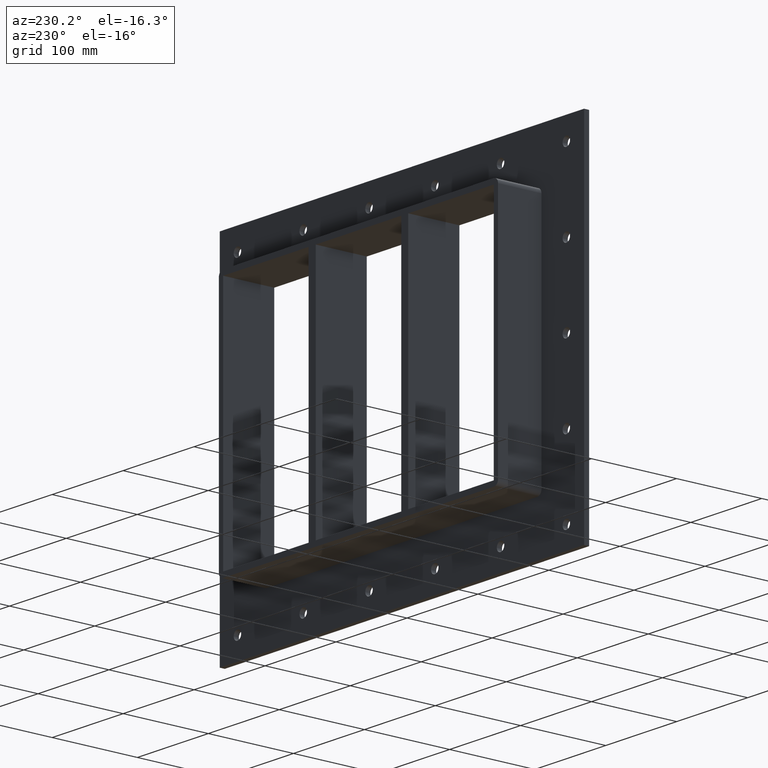
[diagram: clean part render]
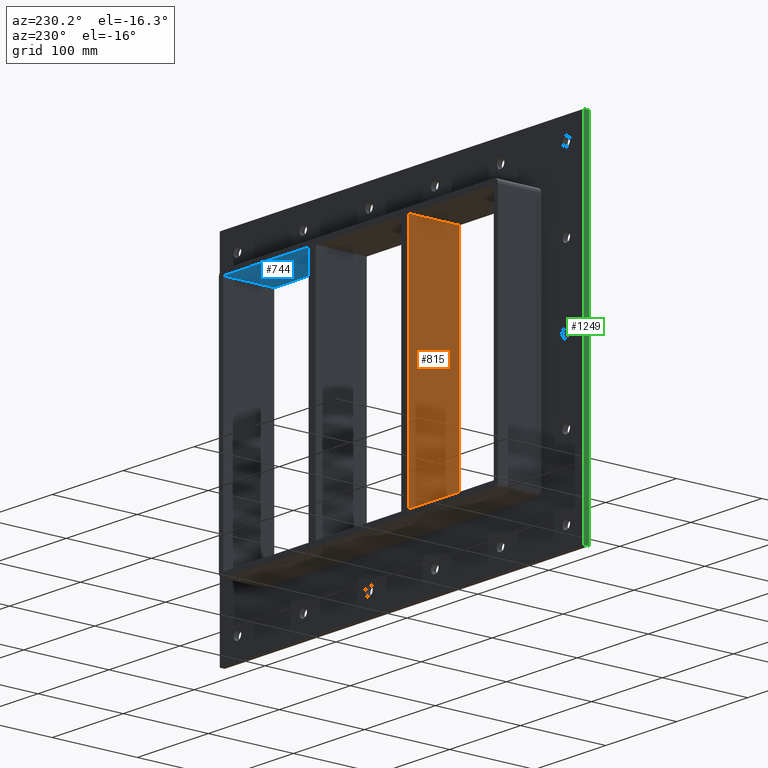
[diagram: same view with three faces highlighted in distinct colors, each labeled with its STEP entity id]
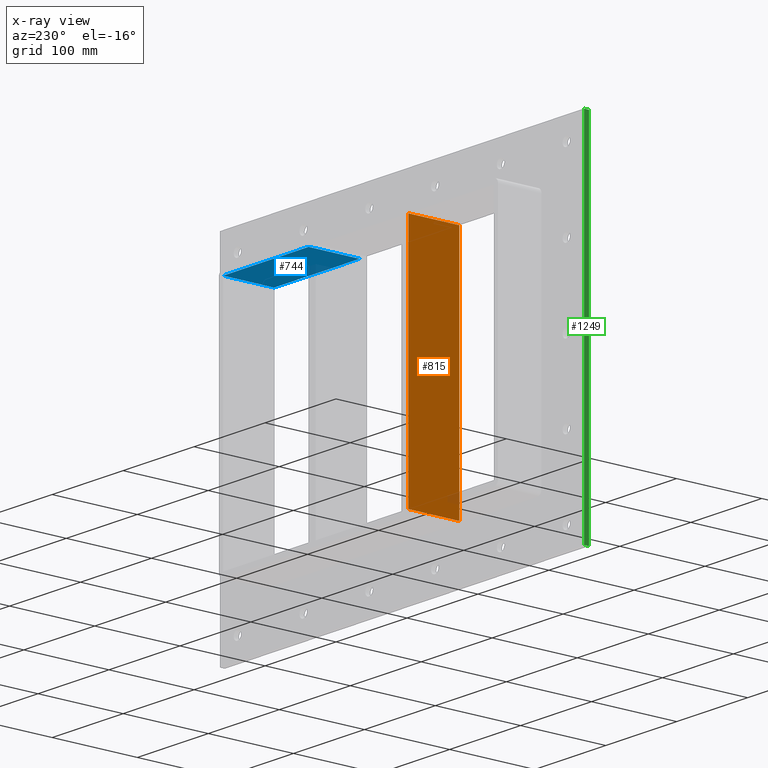
[diagram: x-ray of the same camera — body ghosted, the three highlighted faces saturated]
A machine part, auxiliary view with three faces highlighted in distinct colors.
The next image is the same camera in x-ray (body ghosted, the three faces saturated) — at least one of them is partly hidden behind the body in this view.
Their STEP definitions:

[orange] entity #815 — the highlighted planar face has unit normal (-1, 0, 0).
#776=CARTESIAN_POINT('',(-70.250000000001364,-3.0,-139.0));
#777=DIRECTION('',(-1.0,0.0,0.0));
#778=DIRECTION('',(0.0,0.0,1.0));
#779=AXIS2_PLACEMENT_3D('',#776,#777,#778);
#780=PLANE('',#779);
#781=CARTESIAN_POINT('',(-70.250000000001364,-3.0,-139.0));
#782=VERTEX_POINT('',#781);
#783=CARTESIAN_POINT('',(-70.250000000001407,-3.0,139.0));
#784=VERTEX_POINT('',#783);
#785=CARTESIAN_POINT('',(-70.250000000001364,-3.0,-139.0));
#786=DIRECTION('',(0.0,0.0,1.0));
#787=VECTOR('',#786,278.0);
#788=LINE('',#785,#787);
#789=EDGE_CURVE('',#782,#784,#788,.T.);
#790=ORIENTED_EDGE('',*,*,#789,.T.);
#791=CARTESIAN_POINT('',(-70.250000000001407,57.0,139.0));
#792=VERTEX_POINT('',#791);
#793=CARTESIAN_POINT('',(-70.250000000001407,57.000000000000007,139.0));
#794=DIRECTION('',(0.0,-1.0,0.0));
#795=VECTOR('',#794,60.000000000000007);
#796=LINE('',#793,#795);
#797=EDGE_CURVE('',#792,#784,#796,.T.);
#798=ORIENTED_EDGE('',*,*,#797,.F.);
#799=CARTESIAN_POINT('',(-70.250000000001364,57.0,-139.0));
#800=VERTEX_POINT('',#799);
#801=CARTESIAN_POINT('',(-70.250000000001364,57.0,-139.0));
#802=DIRECTION('',(0.0,0.0,1.0));
#803=VECTOR('',#802,278.0);
#804=LINE('',#801,#803);
#805=EDGE_CURVE('',#800,#792,#804,.T.);
#806=ORIENTED_EDGE('',*,*,#805,.F.);
#807=CARTESIAN_POINT('',(-70.250000000001364,-3.0,-139.0));
#808=DIRECTION('',(0.0,1.0,0.0));
#809=VECTOR('',#808,60.000000000000007);
#810=LINE('',#807,#809);
#811=EDGE_CURVE('',#782,#800,#810,.T.);
#812=ORIENTED_EDGE('',*,*,#811,.F.);
#813=EDGE_LOOP('',(#790,#798,#806,#812));
#814=FACE_OUTER_BOUND('',#813,.T.);
#815=ADVANCED_FACE('',(#814),#780,.T.);

[blue] entity #744 — the highlighted planar face has unit normal (0, 0, 1).
#617=CARTESIAN_POINT('',(70.250000000003638,-3.0,139.0));
#618=VERTEX_POINT('',#617);
#635=CARTESIAN_POINT('',(70.250000000003638,57.0,139.0));
#636=VERTEX_POINT('',#635);
#643=CARTESIAN_POINT('',(70.250000000003638,-3.0,139.0));
#644=DIRECTION('',(0.0,1.0,0.0));
#645=VECTOR('',#644,60.000000000000007);
#646=LINE('',#643,#645);
#647=EDGE_CURVE('',#618,#636,#646,.T.);
#714=CARTESIAN_POINT('',(-190.75000000000003,0.0,139.0));
#715=DIRECTION('',(0.0,0.0,1.0));
#716=DIRECTION('',(1.0,0.0,0.0));
#717=AXIS2_PLACEMENT_3D('',#714,#715,#716);
#718=PLANE('',#717);
#719=ORIENTED_EDGE('',*,*,#647,.T.);
#720=CARTESIAN_POINT('',(190.75000000000011,57.0,139.0));
#721=VERTEX_POINT('',#720);
#722=CARTESIAN_POINT('',(190.75000000000011,57.0,139.0));
#723=DIRECTION('',(-1.0,0.0,0.0));
#724=VECTOR('',#723,120.49999999999646);
#725=LINE('',#722,#724);
#726=EDGE_CURVE('',#721,#636,#725,.T.);
#727=ORIENTED_EDGE('',*,*,#726,.F.);
#728=CARTESIAN_POINT('',(190.75000000000011,-3.0,139.0));
#729=VERTEX_POINT('',#728);
#730=CARTESIAN_POINT('',(190.75000000000011,-3.0,139.0));
#731=DIRECTION('',(0.0,1.0,0.0));
#732=VECTOR('',#731,60.0);
#733=LINE('',#730,#732);
#734=EDGE_CURVE('',#729,#721,#733,.T.);
#735=ORIENTED_EDGE('',*,*,#734,.F.);
#736=CARTESIAN_POINT('',(70.250000000003652,-3.0,139.0));
#737=DIRECTION('',(1.0,0.0,0.0));
#738=VECTOR('',#737,120.49999999999646);
#739=LINE('',#736,#738);
#740=EDGE_CURVE('',#618,#729,#739,.T.);
#741=ORIENTED_EDGE('',*,*,#740,.F.);
#742=EDGE_LOOP('',(#719,#727,#735,#741));
#743=FACE_OUTER_BOUND('',#742,.T.);
#744=ADVANCED_FACE('',(#743),#718,.F.);

[green] entity #1249 — the highlighted planar face has unit normal (-1, 0, 0).
#905=CARTESIAN_POINT('',(-256.75000000000006,6.000000000000001,204.99999999999997));
#906=VERTEX_POINT('',#905);
#923=CARTESIAN_POINT('',(-256.75000000000006,6.000000000000001,-204.99999999999997));
#924=VERTEX_POINT('',#923);
#931=CARTESIAN_POINT('',(-256.75000000000006,6.000000000000001,-204.99999999999997));
#932=DIRECTION('',(0.0,0.0,1.0));
#933=VECTOR('',#932,409.99999999999994);
#934=LINE('',#931,#933);
#935=EDGE_CURVE('',#924,#906,#934,.T.);
#1069=CARTESIAN_POINT('',(-256.75000000000006,0.0,204.99999999999997));
#1070=VERTEX_POINT('',#1069);
#1079=CARTESIAN_POINT('',(-256.75000000000006,0.0,-204.99999999999997));
#1080=VERTEX_POINT('',#1079);
#1081=CARTESIAN_POINT('',(-256.75000000000006,0.0,-204.99999999999997));
#1082=DIRECTION('',(0.0,0.0,1.0));
#1083=VECTOR('',#1082,409.99999999999994);
#1084=LINE('',#1081,#1083);
#1085=EDGE_CURVE('',#1080,#1070,#1084,.T.);
#1228=CARTESIAN_POINT('',(-256.75000000000006,0.0,-204.99999999999997));
#1229=DIRECTION('',(-1.0,0.0,0.0));
#1230=DIRECTION('',(0.0,0.0,1.0));
#1231=AXIS2_PLACEMENT_3D('',#1228,#1229,#1230);
#1232=PLANE('',#1231);
#1233=ORIENTED_EDGE('',*,*,#1085,.T.);
#1234=CARTESIAN_POINT('',(-256.75000000000006,0.0,204.99999999999997));
#1235=DIRECTION('',(0.0,1.0,0.0));
#1236=VECTOR('',#1235,6.000000000000001);
#1237=LINE('',#1234,#1236);
#1238=EDGE_CURVE('',#1070,#906,#1237,.T.);
#1239=ORIENTED_EDGE('',*,*,#1238,.T.);
#1240=ORIENTED_EDGE('',*,*,#935,.F.);
#1241=CARTESIAN_POINT('',(-256.75000000000006,0.0,-204.99999999999997));
#1242=DIRECTION('',(0.0,1.0,0.0));
#1243=VECTOR('',#1242,6.000000000000001);
#1244=LINE('',#1241,#1243);
#1245=EDGE_CURVE('',#1080,#924,#1244,.T.);
#1246=ORIENTED_EDGE('',*,*,#1245,.F.);
#1247=EDGE_LOOP('',(#1233,#1239,#1240,#1246));
#1248=FACE_OUTER_BOUND('',#1247,.T.);
#1249=ADVANCED_FACE('',(#1248),#1232,.T.);